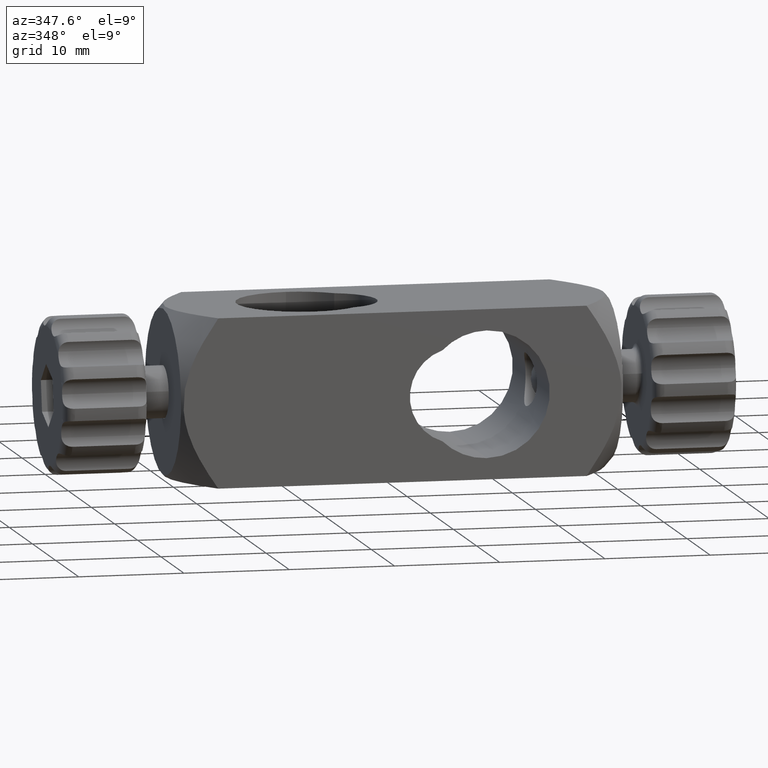
[diagram: clean part render]
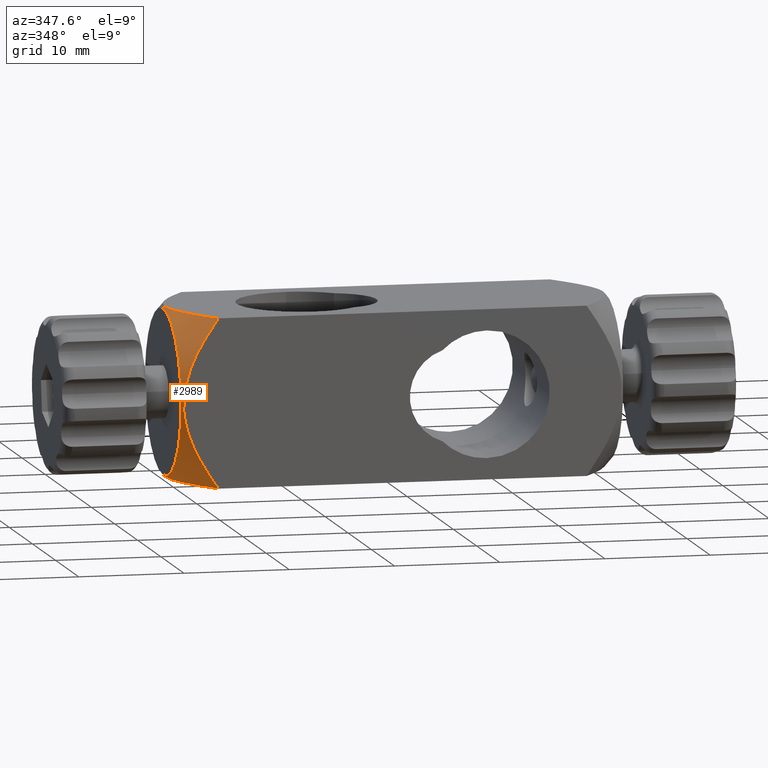
[diagram: same view with one face highlighted and labeled with its STEP entity id]
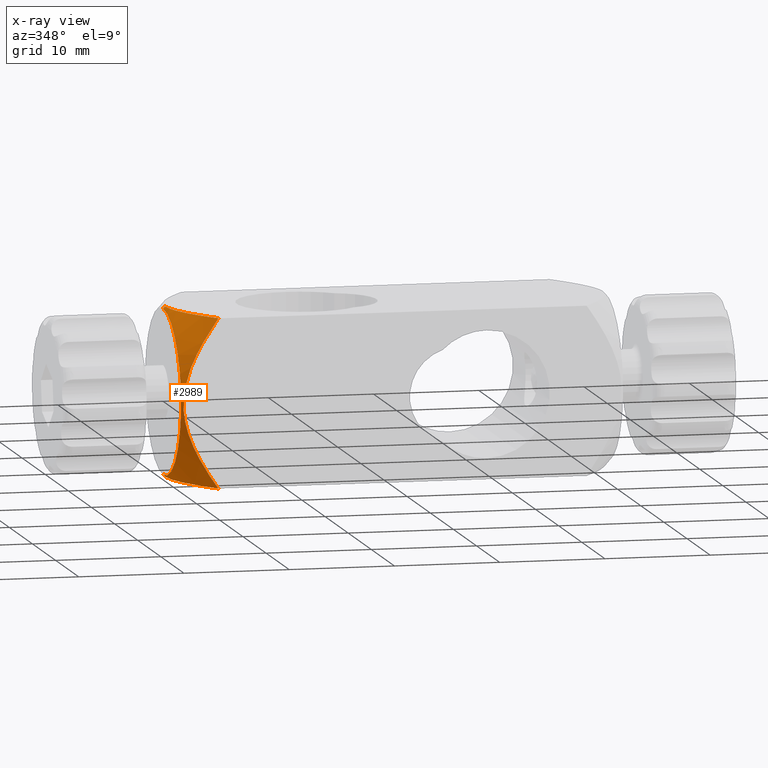
[diagram: x-ray of the same camera — body ghosted, the highlighted face saturated]
A machine part, auxiliary view. The second image highlights one B-rep face of the part: STEP entity #2989.
The next image is the same camera in x-ray: the body ghosted, the highlighted face saturated — about 0% of this face is hidden behind the body in this view.
In plain terms, the highlighted conical surface has half-angle 45 deg.
Its self-contained STEP definition (entity closure, byte-faithful):
#27 = CARTESIAN_POINT ( 'NONE',  ( -20.61293202480144870, -8.000000000000000000, 1.835684253254700415 ) ) ;
#69 = CARTESIAN_POINT ( 'NONE',  ( -20.61701652224634884, -1.817904995477410246, 7.999999999999998224 ) ) ;
#133 = DIRECTION ( 'NONE',  ( 0.000000000000000000, 0.000000000000000000, -1.000000000000000000 ) ) ;
#218 = ORIENTED_EDGE ( 'NONE', *, *, #778, .F. ) ;
#220 = CARTESIAN_POINT ( 'NONE',  ( -17.50000000000000000, 0.000000000000000000, -11.31370849898476294 ) ) ;
#320 = CARTESIAN_POINT ( 'NONE',  ( -20.69026019973990316, -1.455835578218859672, -8.000000000000003553 ) ) ;
#389 = CARTESIAN_POINT ( 'NONE',  ( -21.00000000000000355, 1.172502379265107817E-15, 7.813708498984763828 ) ) ;
#474 = CARTESIAN_POINT ( 'NONE',  ( -20.78897169824393387, -8.000000000000000000, -0.7250275231878013926 ) ) ;
#510 = CARTESIAN_POINT ( 'NONE',  ( -20.07182435414942745, -3.572536052423590291, 8.000000000000000000 ) ) ;
#512 = VERTEX_POINT ( 'NONE', #2187 ) ;
#547 = CARTESIAN_POINT ( 'NONE',  ( -19.09497030133664808, -5.540803229082465364, 7.999999999999996447 ) ) ;
#635 = CARTESIAN_POINT ( 'NONE',  ( -20.78844343409576467, -0.7307012536123648205, 7.999999999999998224 ) ) ;
#676 = EDGE_CURVE ( 'NONE', #5512, #5366, #3301, .T. ) ;
#770 = VERTEX_POINT ( 'NONE', #4381 ) ;
#778 = EDGE_CURVE ( 'NONE', #5512, #2603, #5330, .T. ) ;
#797 = B_SPLINE_CURVE_WITH_KNOTS ( 'NONE', 3,
 ( #5595, #5138, #4766, #547, #3792, #510, #1930, #69, #1989, #635, #4314, #1509 ),
 .UNSPECIFIED., .F., .F.,
 ( 4, 2, 2, 2, 2, 4 ),
 ( 0.009068250966284779543, 0.01125893757414810244, 0.01344962418201142360, 0.01564031078987474649, 0.01673565409380640967, 0.01783099739773806938 ),
 .UNSPECIFIED. ) ;
#835 = ORIENTED_EDGE ( 'NONE', *, *, #676, .T. ) ;
#902 = CARTESIAN_POINT ( 'NONE',  ( -20.61811455882616073, -7.999999999999998224, -1.813016830848963368 ) ) ;
#962 = CARTESIAN_POINT ( 'NONE',  ( -20.69119034948053226, -7.999999999999998224, -1.450711989762708543 ) ) ;
#993 = CARTESIAN_POINT ( 'NONE',  ( -20.42562860089000409, -8.000000000000000000, 2.544972745423849769 ) ) ;
#1028 = CARTESIAN_POINT ( 'NONE',  ( -19.08432518912336562, -8.000000000000000000, 5.558985842700170821 ) ) ;
#1380 = CARTESIAN_POINT ( 'NONE',  ( -18.32520749897511081, -8.000000000000000000, 6.800740932893622137 ) ) ;
#1400 = CARTESIAN_POINT ( 'NONE',  ( -20.81370849898476649, 9.797174314798570497E-16, 8.000000000000000000 ) ) ;
#1443 = CARTESIAN_POINT ( 'NONE',  ( -20.78736702255115532, -8.000000000000000000, 0.7440030343107454369 ) ) ;
#1474 = VECTOR ( 'NONE', #2142, 999.9999999999998863 ) ;
#1509 = CARTESIAN_POINT ( 'NONE',  ( -20.81370849898476649, 9.797174314798570497E-16, 8.000000000000000000 ) ) ;
#1625 = CARTESIAN_POINT ( 'NONE',  ( -20.33557784473262942, -2.890462979313520808, -8.000000000000001776 ) ) ;
#1681 = CARTESIAN_POINT ( 'NONE',  ( -20.07182435414851440, -3.572536052425639763, -8.000000000000003553 ) ) ;
#1697 = LINE ( 'NONE', #220, #5674 ) ;
#1712 = CARTESIAN_POINT ( 'NONE',  ( -20.81370849898476649, -7.838516384728583804E-24, -8.000000000000001776 ) ) ;
#1769 = CARTESIAN_POINT ( 'NONE',  ( -17.50000000000000000, -8.000000000000001776, -8.000000000000003553 ) ) ;
#1893 = CARTESIAN_POINT ( 'NONE',  ( -20.68678732647625296, -8.000000000000000000, 1.475883045133423943 ) ) ;
#1930 = CARTESIAN_POINT ( 'NONE',  ( -20.33557784473395458, -2.890462979310099101, 7.999999999999996447 ) ) ;
#1989 = CARTESIAN_POINT ( 'NONE',  ( -20.69026019974022290, -1.455835578216780446, 7.999999999999998224 ) ) ;
#2142 = DIRECTION ( 'NONE',  ( 0.7071067811865479058, 8.659560562354930393E-17, 0.7071067811865472397 ) ) ;
#2187 = CARTESIAN_POINT ( 'NONE',  ( -17.50000000000000000, -8.000000000000001776, -8.000000000000003553 ) ) ;
#2318 = CARTESIAN_POINT ( 'NONE',  ( -20.81342041344700178, -8.000000000000000000, 0.3728303006373208106 ) ) ;
#2378 = CARTESIAN_POINT ( 'NONE',  ( -17.92043943690110197, -8.000000000000001776, 7.405408846177969018 ) ) ;
#2389 = ORIENTED_EDGE ( 'NONE', *, *, #4435, .T. ) ;
#2394 = EDGE_LOOP ( 'NONE', ( #218, #835, #3661, #3635, #5639, #2389 ) ) ;
#2436 = AXIS2_PLACEMENT_3D ( 'NONE', #3385, #2902, #133 ) ;
#2478 = EDGE_CURVE ( 'NONE', #512, #770, #2585, .T. ) ;
#2563 = CARTESIAN_POINT ( 'NONE',  ( -17.50000000000000000, -8.000000000000001776, -8.000000000000003553 ) ) ;
#2585 = B_SPLINE_CURVE_WITH_KNOTS ( 'NONE', 3,
 ( #1769, #3159, #4454, #5006, #2711, #5947, #3187, #902, #962, #474, #4608, #2318, #1443, #1893, #27, #993, #5103, #4159, #4128, #3252, #1028, #1380, #2378, #2799 ),
 .UNSPECIFIED., .F., .F.,
 ( 4, 2, 2, 2, 2, 2, 2, 2, 2, 2, 2, 4 ),
 ( 0.009068250966284779543, 0.01126049084664369759, 0.01345273072700261564, 0.01564497060736153369, 0.01674109054754099185, 0.01783721048772045348, 0.01893333042789990817, 0.02002945036807936979, 0.02112557030825883142, 0.02222169024843828611, 0.02441393012879720589, 0.02660617000915612568 ),
 .UNSPECIFIED. ) ;
#2603 = VERTEX_POINT ( 'NONE', #1400 ) ;
#2617 = CARTESIAN_POINT ( 'NONE',  ( -19.45227572583581122, -4.896825401250164411, -8.000000000000005329 ) ) ;
#2711 = CARTESIAN_POINT ( 'NONE',  ( -19.45350763172082509, -7.999999999999998224, -4.894535881156402368 ) ) ;
#2799 = CARTESIAN_POINT ( 'NONE',  ( -17.50000000000000000, -8.000000000000001776, 8.000000000000003553 ) ) ;
#2902 = DIRECTION ( 'NONE',  ( 1.000000000000000000, -0.000000000000000000, -0.000000000000000000 ) ) ;
#2989 = ADVANCED_FACE ( 'NONE', ( #4254 ), #3313, .T. ) ;
#3107 = CARTESIAN_POINT ( 'NONE',  ( -17.50000000000000000, 1.385529689976789652E-15, 11.31370849898476294 ) ) ;
#3159 = CARTESIAN_POINT ( 'NONE',  ( -17.92229514064221263, -8.000000000000000000, -7.402784484779529883 ) ) ;
#3187 = CARTESIAN_POINT ( 'NONE',  ( -20.33697051623881435, -7.999999999999996447, -2.886549292154275470 ) ) ;
#3252 = CARTESIAN_POINT ( 'NONE',  ( -19.43907390183380457, -8.000000000000001776, 4.922155278878838303 ) ) ;
#3301 = CIRCLE ( 'NONE', #2436, 7.813708498984763828 ) ;
#3313 = CONICAL_SURFACE ( 'NONE', #5253, 11.31370849898476294, 0.7853981633974479459 ) ;
#3385 = CARTESIAN_POINT ( 'NONE',  ( -21.00000000000000355, 0.000000000000000000, 0.000000000000000000 ) ) ;
#3550 = CARTESIAN_POINT ( 'NONE',  ( -20.81370849898476649, -0.3663150559983832100, -8.000000000000001776 ) ) ;
#3635 = ORIENTED_EDGE ( 'NONE', *, *, #5116, .T. ) ;
#3661 = ORIENTED_EDGE ( 'NONE', *, *, #5375, .T. ) ;
#3792 = CARTESIAN_POINT ( 'NONE',  ( -19.45227572583574016, -4.896825401250433529, 7.999999999999998224 ) ) ;
#3890 = CARTESIAN_POINT ( 'NONE',  ( -21.00000000000000355, 0.000000000000000000, -7.813708498984763828 ) ) ;
#4128 = CARTESIAN_POINT ( 'NONE',  ( -19.90721175397872500, -8.000000000000000000, 3.925766671444825828 ) ) ;
#4159 = CARTESIAN_POINT ( 'NONE',  ( -20.05300170012581518, -8.000000000000000000, 3.585025002080008072 ) ) ;
#4254 = FACE_OUTER_BOUND ( 'NONE', #2394, .T. ) ;
#4283 = CARTESIAN_POINT ( 'NONE',  ( -17.50000000000000000, 0.000000000000000000, 0.000000000000000000 ) ) ;
#4314 = CARTESIAN_POINT ( 'NONE',  ( -20.81370849898476649, -0.3663150559988451738, 8.000000000000000000 ) ) ;
#4365 = CARTESIAN_POINT ( 'NONE',  ( -18.32920172496105593, -6.794962145850087509, -8.000000000000003553 ) ) ;
#4381 = CARTESIAN_POINT ( 'NONE',  ( -17.50000000000000000, -8.000000000000001776, 8.000000000000003553 ) ) ;
#4435 = EDGE_CURVE ( 'NONE', #770, #2603, #797, .T. ) ;
#4454 = CARTESIAN_POINT ( 'NONE',  ( -18.32977993607270051, -7.999999999999998224, -6.794100204240238305 ) ) ;
#4608 = CARTESIAN_POINT ( 'NONE',  ( -20.81399172713669543, -8.000000000000000000, -0.3603628882988935134 ) ) ;
#4766 = CARTESIAN_POINT ( 'NONE',  ( -18.32920172496067934, -6.794962145850638180, 7.999999999999998224 ) ) ;
#4966 = CARTESIAN_POINT ( 'NONE',  ( -19.09497030133769613, -5.540803229080683678, -8.000000000000003553 ) ) ;
#5006 = CARTESIAN_POINT ( 'NONE',  ( -19.09602088434860079, -7.999999999999996447, -5.538997386591455907 ) ) ;
#5103 = CARTESIAN_POINT ( 'NONE',  ( -20.31220751485102127, -8.000000000000000000, 2.894467072397331364 ) ) ;
#5116 = EDGE_CURVE ( 'NONE', #5452, #512, #5857, .T. ) ;
#5138 = CARTESIAN_POINT ( 'NONE',  ( -17.92199593094675336, -7.403207631188847948, 8.000000000000000000 ) ) ;
#5202 = DIRECTION ( 'NONE',  ( 1.000000000000000000, -0.000000000000000000, -0.000000000000000000 ) ) ;
#5253 = AXIS2_PLACEMENT_3D ( 'NONE', #4283, #5202, #5257 ) ;
#5257 = DIRECTION ( 'NONE',  ( 0.000000000000000000, 0.000000000000000000, -1.000000000000000000 ) ) ;
#5318 = CARTESIAN_POINT ( 'NONE',  ( -20.61701652224494197, -1.817904995483557773, -8.000000000000001776 ) ) ;
#5330 = LINE ( 'NONE', #3107, #1474 ) ;
#5354 = DIRECTION ( 'NONE',  ( 0.7071067811865479058, 0.000000000000000000, -0.7071067811865472397 ) ) ;
#5366 = VERTEX_POINT ( 'NONE', #3890 ) ;
#5375 = EDGE_CURVE ( 'NONE', #5366, #5452, #1697, .T. ) ;
#5400 = CARTESIAN_POINT ( 'NONE',  ( -17.92199593094690258, -7.403207631188638338, -8.000000000000003553 ) ) ;
#5452 = VERTEX_POINT ( 'NONE', #5958 ) ;
#5512 = VERTEX_POINT ( 'NONE', #389 ) ;
#5595 = CARTESIAN_POINT ( 'NONE',  ( -17.50000000000000000, -8.000000000000001776, 8.000000000000003553 ) ) ;
#5639 = ORIENTED_EDGE ( 'NONE', *, *, #2478, .T. ) ;
#5674 = VECTOR ( 'NONE', #5354, 999.9999999999998863 ) ;
#5760 = CARTESIAN_POINT ( 'NONE',  ( -20.78844343409582152, -0.7307012536122524660, -8.000000000000000000 ) ) ;
#5857 = B_SPLINE_CURVE_WITH_KNOTS ( 'NONE', 3,
 ( #1712, #3550, #5760, #320, #5318, #1625, #1681, #2617, #4966, #4365, #5400, #2563 ),
 .UNSPECIFIED., .F., .F.,
 ( 4, 2, 2, 2, 2, 4 ),
 ( 0.04275555840279425535, 0.04384894867355088738, 0.04494233894430751941, 0.04712911948582078348, 0.04931590002733404754, 0.05150268056884731160 ),
 .UNSPECIFIED. ) ;
#5947 = CARTESIAN_POINT ( 'NONE',  ( -20.07322756702664179, -8.000000000000000000, -3.569191524466326815 ) ) ;
#5958 = CARTESIAN_POINT ( 'NONE',  ( -20.81370849898476649, -7.838516384728583804E-24, -8.000000000000001776 ) ) ;